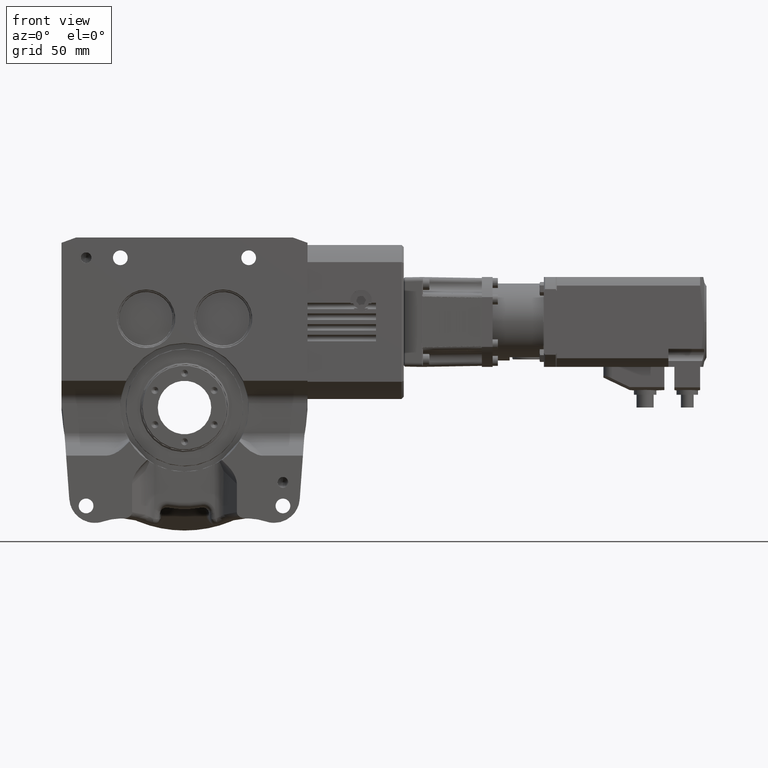
[diagram: clean part render]
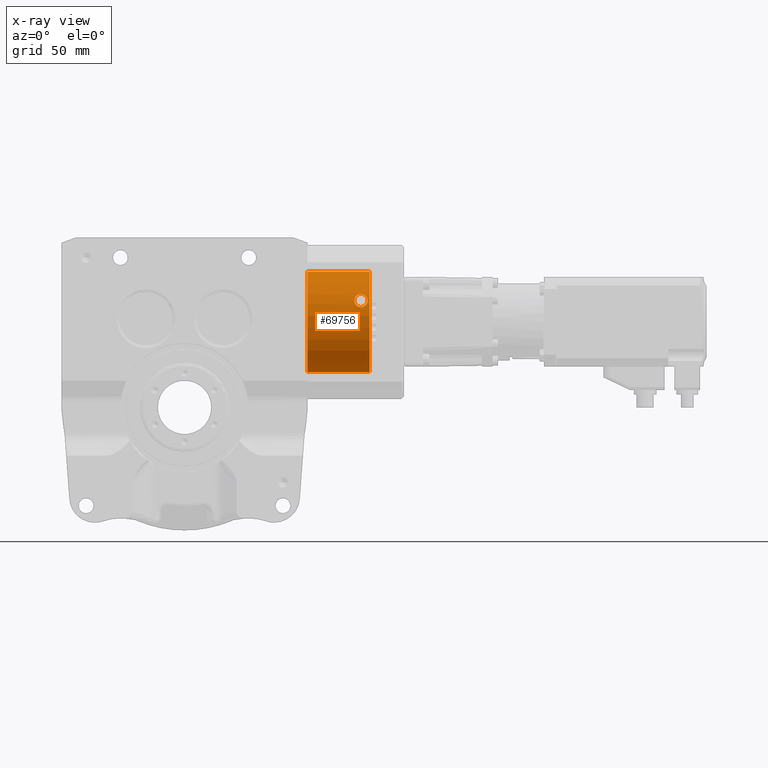
[diagram: x-ray — body ghosted, one internal face saturated and labeled with its STEP entity id]
A machine part, front view, then the same camera in x-ray: the body is ghosted and one INTERNAL B-rep face — a face not visible from any outside direction — is saturated and labeled: STEP entity #69756.
In plain terms, the highlighted cylindrical surface (partial cylindrical patch) has radius 23.5 mm, axis along (-1, 0, 0).
Its self-contained STEP definition (entity closure, byte-faithful):
#199 = CARTESIAN_POINT ( 'NONE',  ( 22.89499997156706002, -22.17069500146465089, 7.791802927879325047 ) ) ;
#599 = CARTESIAN_POINT ( 'NONE',  ( 21.95043312330504648, -21.24158163322308468, 10.05212658422136762 ) ) ;
#815 = DIRECTION ( 'NONE',  ( -1.000000000000000000, 0.000000000000000000, 0.000000000000000000 ) ) ;
#1785 = CARTESIAN_POINT ( 'NONE',  ( 22.74801269831941042, -20.17130559358625064, 12.05704287090212112 ) ) ;
#2176 = CARTESIAN_POINT ( 'NONE',  ( 23.70907681655216237, -19.73181009776120476, 12.76349759613219348 ) ) ;
#3766 = ORIENTED_EDGE ( 'NONE', *, *, #64572, .F. ) ;
#3895 = FACE_BOUND ( 'NONE', #32121, .T. ) ;
#4386 = CARTESIAN_POINT ( 'NONE',  ( 28.04134119124819691, -21.15271762113155063, 10.23827498022649962 ) ) ;
#4782 = CARTESIAN_POINT ( 'NONE',  ( 27.39217048328112369, -22.05725042040715422, 8.107259374718269740 ) ) ;
#5177 = CARTESIAN_POINT ( 'NONE',  ( 27.59146375826266961, -20.43183141868062336, 11.61015125422974492 ) ) ;
#5418 = CARTESIAN_POINT ( 'NONE',  ( 22.95197774406377178, -22.18903689821153336, 7.739297614446987161 ) ) ;
#5491 = CARTESIAN_POINT ( 'NONE',  ( -3.469446951953614978E-15, 2.877919977996279926E-15, -23.50000000000000000 ) ) ;
#5569 = CARTESIAN_POINT ( 'NONE',  ( 27.53537711014667266, -20.38302065592441537, 11.69540710436081810 ) ) ;
#5588 = B_SPLINE_CURVE_WITH_KNOTS ( 'NONE', 3,
 ( #38331, #75069, #44707, #14386, #35121, #16387, #72649, #78233, #23554, #59479, #54269, #47893, #78628, #29147, #53479, #11556, #29935, #41901, #65058, #17179, #52691, #66250, #23946, #77839, #35900, #60255, #59071, #72270, #5569, #29542, #65870, #5177, #41506, #10366, #46712, #17563, #40713, #48277, #34721, #23153, #47497, #17949, #42288, #66654, #71866, #11957, #53873, #11171, #4386, #28764, #53091, #35511, #71475, #77457, #59856, #36296, #60641, #22758, #71085, #28357, #77068, #47096, #22365, #16779, #41104, #65461, #4782, #10770, #5955, #12348, #6732, #49078, #7517, #38262, #55442, #62215 ),
 .UNSPECIFIED., .F., .F.,
 ( 4, 2, 2, 1, 1, 2, 2, 2, 2, 1, 1, 1, 2, 2, 2, 1, 1, 1, 2, 2, 2, 2, 1, 1, 2, 2, 2, 2, 2, 1, 2, 2, 2, 2, 1, 1, 2, 2, 2, 2, 1, 2, 2, 2, 4 ),
 ( 0.000000000000000000, 0.06250000000001074141, 0.09375000000001655620, 0.1093750000000198591, 0.1171875000000215244, 0.1210937500000226069, 0.1250000000000236755, 0.1875000000000293932, 0.2187500000000329459, 0.2343750000000343892, 0.2421875000000351386, 0.2460937500000351941, 0.2480468750000350275, 0.2500000000000348610, 0.2812500000000334177, 0.2968750000000323630, 0.3046875000000319189, 0.3085937500000323075, 0.3105468750000324185, 0.3125000000000325295, 0.3437500000000316414, 0.3593750000000312528, 0.3671875000000315858, 0.3710937500000319189, 0.3730468750000324185, 0.3750000000000329181, 0.4062500000000358602, 0.4375000000000387468, 0.4687500000000416889, 0.4843750000000430211, 0.4921875000000436318, 0.5000000000000441869, 0.5625000000000494049, 0.5937500000000519584, 0.6093750000000532907, 0.6171875000000537348, 0.6210937500000536238, 0.6250000000000535127, 0.6875000000000479616, 0.7187500000000451861, 0.7343750000000437428, 0.7421875000000426326, 0.7500000000000415223, 0.8750000000000207612, 1.000000000000000000 ),
 .UNSPECIFIED. ) ;
#5811 = CARTESIAN_POINT ( 'NONE',  ( 23.14995892684027368, -22.24638167884539186, 7.572945313511030285 ) ) ;
#5904 = EDGE_CURVE ( 'NONE', #67388, #18855, #49908, .T. ) ;
#5955 = CARTESIAN_POINT ( 'NONE',  ( 27.29750277825292670, -22.09860071749340449, 7.993863632665717311 ) ) ;
#6581 = CARTESIAN_POINT ( 'NONE',  ( 21.95902926734257576, -21.12182279223205938, 10.30119215420751466 ) ) ;
#6732 = CARTESIAN_POINT ( 'NONE',  ( 27.24931907258000052, -22.11803080675017341, 7.939969040537710576 ) ) ;
#6978 = CARTESIAN_POINT ( 'NONE',  ( 21.95511173855185305, -21.35149583975198340, 9.816413563948309218 ) ) ;
#7517 = CARTESIAN_POINT ( 'NONE',  ( 26.60604533702732510, -22.31377738327580929, 7.373742633501970900 ) ) ;
#7748 = CARTESIAN_POINT ( 'NONE',  ( 23.76057766762001577, -19.71667698439627969, 12.78681968000590707 ) ) ;
#7992 = EDGE_LOOP ( 'NONE', ( #65829, #40848, #35888 ) ) ;
#8147 = CARTESIAN_POINT ( 'NONE',  ( 24.59404191782711990, -19.54347717270393403, 13.04999999999999716 ) ) ;
#8155 = CARTESIAN_POINT ( 'NONE',  ( 24.28168821643829745, -22.59999999999999787, 6.441273166075170309 ) ) ;
#8540 = CARTESIAN_POINT ( 'NONE',  ( 22.17279478751430233, -20.68945443445651833, 11.14433006832356376 ) ) ;
#9971 = VECTOR ( 'NONE', #49501, 1000.000000000000000 ) ;
#10366 = CARTESIAN_POINT ( 'NONE',  ( 27.70380030405567950, -20.54306733560412823, 11.41216559084690374 ) ) ;
#10770 = CARTESIAN_POINT ( 'NONE',  ( 27.34576618853876084, -22.07840564747581880, 8.049585675160955134 ) ) ;
#11171 = CARTESIAN_POINT ( 'NONE',  ( 28.03462534095849534, -21.11812944524791291, 10.30951299531651166 ) ) ;
#11409 = CARTESIAN_POINT ( 'NONE',  ( 23.40355350091324027, -22.30709968186946668, 7.392924191762340058 ) ) ;
#11556 = CARTESIAN_POINT ( 'NONE',  ( 26.99752083665401869, -20.02085059020054203, 12.30545575455743013 ) ) ;
#11647 = CIRCLE ( 'NONE', #32033, 23.50000000000000000 ) ;
#11804 = CARTESIAN_POINT ( 'NONE',  ( 22.12338896078222916, -20.75879820336716008, 11.01425203031524269 ) ) ;
#11957 = CARTESIAN_POINT ( 'NONE',  ( 28.00262613703578651, -21.00261385894379274, 10.54345040359028296 ) ) ;
#12000 = ORIENTED_EDGE ( 'NONE', *, *, #46199, .T. ) ;
#12348 = CARTESIAN_POINT ( 'NONE',  ( 27.26492701337710756, -22.11185072927155204, 7.957156940806316747 ) ) ;
#12396 = VERTEX_POINT ( 'NONE', #45013 ) ;
#12591 = CARTESIAN_POINT ( 'NONE',  ( 21.95076834792660492, -21.23380798087566390, 10.06853549990419516 ) ) ;
#13393 = CARTESIAN_POINT ( 'NONE',  ( 24.17528188114542687, -19.59925156589372008, 12.96769323900944926 ) ) ;
#14386 = CARTESIAN_POINT ( 'NONE',  ( 25.71428816457069289, -19.59897439948856146, 12.96701106235094336 ) ) ;
#14641 = ORIENTED_EDGE ( 'NONE', *, *, #34010, .T. ) ;
#15155 = CARTESIAN_POINT ( 'NONE',  ( -8.307318497359771570, -22.59999999999999787, 6.441273166075170309 ) ) ;
#15779 = CARTESIAN_POINT ( 'NONE',  ( 24.28168821643829745, -22.59999999999999787, 6.441273166075170309 ) ) ;
#16387 = CARTESIAN_POINT ( 'NONE',  ( 25.96728879662837031, -19.64753447292511268, 12.89303409916596976 ) ) ;
#16779 = CARTESIAN_POINT ( 'NONE',  ( 27.69705990316940714, -21.88546936635152207, 8.561828943003140679 ) ) ;
#17179 = CARTESIAN_POINT ( 'NONE',  ( 27.17254347350224108, -20.12097212886744302, 12.14070103933407552 ) ) ;
#17563 = CARTESIAN_POINT ( 'NONE',  ( 27.76041473027032680, -20.60631970166985738, 11.29741655514206933 ) ) ;
#17803 = CARTESIAN_POINT ( 'NONE',  ( 21.95111764612329708, -21.31629812341402896, 9.892853569369849609 ) ) ;
#17949 = CARTESIAN_POINT ( 'NONE',  ( 27.85203491875904191, -20.72154586609044458, 11.08500161090342573 ) ) ;
#18196 = CARTESIAN_POINT ( 'NONE',  ( 25.00000000000000000, -22.44877502225899946, 6.949999999999999289 ) ) ;
#18586 = CARTESIAN_POINT ( 'NONE',  ( 22.23937352864247785, -21.82934249313454345, 8.702307992388742974 ) ) ;
#18855 = VERTEX_POINT ( 'NONE', #49403 ) ;
#18971 = CARTESIAN_POINT ( 'NONE',  ( 21.96672708835875554, -21.42039994912943612, 9.665411505979312423 ) ) ;
#19091 = ORIENTED_EDGE ( 'NONE', *, *, #26718, .F. ) ;
#19359 = CARTESIAN_POINT ( 'NONE',  ( 23.74513881801649262, -19.72114466754182160, 12.77993635951510498 ) ) ;
#19907 = EDGE_LOOP ( 'NONE', ( #19091, #12000, #14641, #3766 ) ) ;
#20670 = ORIENTED_EDGE ( 'NONE', *, *, #46764, .F. ) ;
#20937 = CARTESIAN_POINT ( 'NONE',  ( 23.45068350865273032, -19.81858853556337863, 12.62888155511793187 ) ) ;
#21000 = CARTESIAN_POINT ( 'NONE',  ( 25.00000000000000000, -22.44877502225899946, 6.949999999999999289 ) ) ;
#22283 = FACE_OUTER_BOUND ( 'NONE', #19907, .T. ) ;
#22365 = CARTESIAN_POINT ( 'NONE',  ( 27.78681152653518538, -21.81369291468443095, 8.743888084579422681 ) ) ;
#22758 = CARTESIAN_POINT ( 'NONE',  ( 27.90930147572594322, -21.67398984854622768, 9.082388656361725765 ) ) ;
#22991 = DIRECTION ( 'NONE',  ( 0.000000000000000000, 0.000000000000000000, 1.000000000000000000 ) ) ;
#23153 = CARTESIAN_POINT ( 'NONE',  ( 27.81046267850883780, -20.66759287670773304, 11.18484132483169624 ) ) ;
#23554 = CARTESIAN_POINT ( 'NONE',  ( 26.16662864901126895, -19.69636552891432046, 12.81809449049613470 ) ) ;
#23801 = CARTESIAN_POINT ( 'NONE',  ( 22.14498438137243852, -21.73845157954754370, 8.926916851463206015 ) ) ;
#23946 = CARTESIAN_POINT ( 'NONE',  ( 27.25183609583136501, -20.17020394880956147, 12.05894462695523650 ) ) ;
#24187 = CARTESIAN_POINT ( 'NONE',  ( 22.15012571941229069, -21.74403163562029562, 8.913317114826785570 ) ) ;
#25193 = DIRECTION ( 'NONE',  ( 0.000000000000000000, 0.000000000000000000, 1.000000000000000000 ) ) ;
#25368 = CARTESIAN_POINT ( 'NONE',  ( 22.60315912262202431, -20.27198570064824068, 11.88800518315188803 ) ) ;
#26162 = CARTESIAN_POINT ( 'NONE',  ( 23.63682469462590419, -19.75410430305251097, 12.72909245374876974 ) ) ;
#26718 = EDGE_CURVE ( 'NONE', #74485, #43403, #31737, .T. ) ;
#26791 = B_SPLINE_CURVE_WITH_KNOTS ( 'NONE', 3,
 ( #18196, #48921, #49318, #54888, #11409, #5811, #35749, #5418, #199, #29783, #30174, #54119, #73284, #43311, #78481, #37323, #18586, #61678, #42924, #61263, #24187, #23801, #67281, #48126, #72505, #18971, #6978, #17803, #42139, #36138, #599, #31344, #12591, #55685, #36922, #6581, #54504, #30956, #73673, #66493, #11804, #78863, #48516, #8540, #74063, #50098, #63626, #56865, #39289, #25368, #50877, #57255, #1785, #32111, #43707, #56467, #75234, #45287, #69247, #57640, #44489, #49704, #20937, #68848, #26162, #2176, #19359, #7748, #74462, #68061, #13393, #8147, #37727 ),
 .UNSPECIFIED., .F., .F.,
 ( 4, 2, 2, 2, 1, 2, 2, 2, 2, 1, 1, 2, 2, 2, 2, 1, 1, 1, 1, 2, 2, 2, 2, 2, 1, 1, 2, 2, 2, 2, 2, 1, 1, 1, 2, 2, 2, 2, 1, 1, 1, 2, 2, 4 ),
 ( 0.000000000000000000, 0.1250000000000183187, 0.1875000000000278944, 0.2187500000000322797, 0.2343750000000344724, 0.2421875000000349165, 0.2500000000000353606, 0.3125000000000434097, 0.3437500000000474620, 0.3593750000000493494, 0.3671875000000501821, 0.3710937500000506817, 0.3750000000000511258, 0.4375000000000618394, 0.4687500000000673350, 0.4843750000000697220, 0.4921875000000704437, 0.4960937500000710543, 0.4980468750000715539, 0.4990234375000717759, 0.5000000000000720535, 0.5625000000000369704, 0.5937500000000192069, 0.6093750000000103251, 0.6171875000000063283, 0.6210937500000042188, 0.6230468750000031086, 0.6250000000000021094, 0.6874999999999819034, 0.7187499999999725775, 0.7343749999999674705, 0.7421874999999645839, 0.7460937499999631406, 0.7480468749999628075, 0.7490234374999630296, 0.7499999999999631406, 0.8124999999999671374, 0.8437499999999686917, 0.8593749999999692468, 0.8671874999999690248, 0.8710937499999694689, 0.8730468749999694689, 0.8749999999999695799, 1.000000000000000000 ),
 .UNSPECIFIED. ) ;
#26935 = CARTESIAN_POINT ( 'NONE',  ( 24.51724035459723439, -22.61367503854049232, 6.393292609584736219 ) ) ;
#28357 = CARTESIAN_POINT ( 'NONE',  ( 27.87320520609144836, -21.71797101406666641, 8.976616158875804885 ) ) ;
#28675 = EDGE_CURVE ( 'NONE', #64446, #77371, #5588, .T. ) ;
#28764 = CARTESIAN_POINT ( 'NONE',  ( 28.04556012547044119, -21.18725038034216723, 10.16626699285319368 ) ) ;
#29147 = CARTESIAN_POINT ( 'NONE',  ( 26.79608239852921159, -19.92089582704348416, 12.46708259456119805 ) ) ;
#29542 = CARTESIAN_POINT ( 'NONE',  ( 27.54258803058172234, -20.38923211999785323, 11.68457366918616458 ) ) ;
#29783 = CARTESIAN_POINT ( 'NONE',  ( 22.84013646204104830, -22.15140438592055361, 7.846362592514532608 ) ) ;
#29935 = CARTESIAN_POINT ( 'NONE',  ( 27.05685337155769332, -20.05284300168757028, 12.25318425300981140 ) ) ;
#29937 = VERTEX_POINT ( 'NONE', #5491 ) ;
#30053 = CARTESIAN_POINT ( 'NONE',  ( 29.00000000000000000, 2.877919977996279926E-15, -23.50000000000000000 ) ) ;
#30174 = CARTESIAN_POINT ( 'NONE',  ( 22.80404121167130782, -22.13833314915842365, 7.883179368607892812 ) ) ;
#30494 = AXIS2_PLACEMENT_3D ( 'NONE', #70931, #76497, #22991 ) ;
#30956 = CARTESIAN_POINT ( 'NONE',  ( 22.02578283696724171, -20.92895387627999426, 10.68622275760848872 ) ) ;
#31138 = LINE ( 'NONE', #49108, #9971 ) ;
#31344 = CARTESIAN_POINT ( 'NONE',  ( 21.95062784271882350, -21.23691977200727976, 10.06196958247118189 ) ) ;
#31569 = ORIENTED_EDGE ( 'NONE', *, *, #28675, .F. ) ;
#31737 = CIRCLE ( 'NONE', #30494, 23.50000000000000000 ) ;
#31903 = LINE ( 'NONE', #74648, #43582 ) ;
#31943 = CARTESIAN_POINT ( 'NONE',  ( 25.00000000000000000, -22.62051255781074843, 6.368862663139060132 ) ) ;
#32033 = AXIS2_PLACEMENT_3D ( 'NONE', #61886, #815, #25193 ) ;
#32111 = CARTESIAN_POINT ( 'NONE',  ( 22.76722339536237527, -20.15876110482176031, 12.07793335697555115 ) ) ;
#32121 = EDGE_LOOP ( 'NONE', ( #20670, #31569 ) ) ;
#32903 = CARTESIAN_POINT ( 'NONE',  ( 25.00000000000000000, -22.62051255781074843, 6.368862663139060132 ) ) ;
#33068 = EDGE_CURVE ( 'NONE', #55204, #67388, #64083, .T. ) ;
#34010 = EDGE_CURVE ( 'NONE', #29937, #12396, #11647, .T. ) ;
#34721 = CARTESIAN_POINT ( 'NONE',  ( 27.80497028350697164, -20.66058372441996838, 11.19778593286231327 ) ) ;
#34834 = VECTOR ( 'NONE', #39483, 1000.000000000000000 ) ;
#35121 = CARTESIAN_POINT ( 'NONE',  ( 25.81605099148463722, -19.61631728285876264, 12.94070339194150066 ) ) ;
#35511 = CARTESIAN_POINT ( 'NONE',  ( 28.04860414989083139, -21.22082280704224289, 10.09591590271350192 ) ) ;
#35749 = CARTESIAN_POINT ( 'NONE',  ( 23.06861752474831917, -22.22445573330891477, 7.637174682353387034 ) ) ;
#35888 = ORIENTED_EDGE ( 'NONE', *, *, #52323, .F. ) ;
#35900 = CARTESIAN_POINT ( 'NONE',  ( 27.40281410616139013, -20.27655551547344004, 11.87916832392362032 ) ) ;
#36138 = CARTESIAN_POINT ( 'NONE',  ( 21.95009063239740854, -21.25241853102184209, 10.02920110090714623 ) ) ;
#36296 = CARTESIAN_POINT ( 'NONE',  ( 27.96557444662465741, -21.58951461515320602, 9.281403276225891119 ) ) ;
#36922 = CARTESIAN_POINT ( 'NONE',  ( 21.95307962673002677, -21.18917986192749936, 10.16258068236204615 ) ) ;
#37323 = CARTESIAN_POINT ( 'NONE',  ( 22.30625778348230526, -21.88333675442950721, 8.565948008312592066 ) ) ;
#37727 = CARTESIAN_POINT ( 'NONE',  ( 25.00000000000000000, -19.54347717270395179, 13.05000000000000071 ) ) ;
#38262 = CARTESIAN_POINT ( 'NONE',  ( 25.84164769390247685, -22.42177549446237350, 7.038878837497358987 ) ) ;
#38331 = CARTESIAN_POINT ( 'NONE',  ( 25.00000000000000000, -19.54347717270395179, 13.05000000000000071 ) ) ;
#39289 = CARTESIAN_POINT ( 'NONE',  ( 22.54873577513247795, -20.31345661479987896, 11.81737067377319406 ) ) ;
#39483 = DIRECTION ( 'NONE',  ( 1.000000000000000000, 0.000000000000000000, 0.000000000000000000 ) ) ;
#40713 = CARTESIAN_POINT ( 'NONE',  ( 27.77727634644519839, -20.62615428234501280, 11.26116702792311131 ) ) ;
#40848 = ORIENTED_EDGE ( 'NONE', *, *, #33068, .F. ) ;
#41104 = CARTESIAN_POINT ( 'NONE',  ( 27.53895431224825785, -21.98289236864061991, 8.307013577156361350 ) ) ;
#41506 = CARTESIAN_POINT ( 'NONE',  ( 27.63600306086017611, -20.47327202240843391, 11.53719836841902513 ) ) ;
#41901 = CARTESIAN_POINT ( 'NONE',  ( 27.12470676313515128, -20.09211774255852134, 12.18846813557175501 ) ) ;
#42139 = CARTESIAN_POINT ( 'NONE',  ( 21.94984974472430039, -21.27392921313359864, 9.983519087867426478 ) ) ;
#42288 = CARTESIAN_POINT ( 'NONE',  ( 27.88412652409653703, -20.76845365623067963, 10.99656704061771784 ) ) ;
#42924 = CARTESIAN_POINT ( 'NONE',  ( 22.17334234066323262, -21.76832678606654881, 8.853856117863038833 ) ) ;
#43311 = CARTESIAN_POINT ( 'NONE',  ( 22.51357609850840547, -22.01530206875540685, 8.222259849564249379 ) ) ;
#43403 = VERTEX_POINT ( 'NONE', #50246 ) ;
#43582 = VECTOR ( 'NONE', #50666, 1000.000000000000000 ) ;
#43707 = CARTESIAN_POINT ( 'NONE',  ( 22.78929189773176844, -20.14471058260476255, 12.10128859836564175 ) ) ;
#44489 = CARTESIAN_POINT ( 'NONE',  ( 23.12246554338683424, -19.95573580007392422, 12.41174930703734702 ) ) ;
#44707 = CARTESIAN_POINT ( 'NONE',  ( 25.40798514103294536, -19.55735147940010066, 13.02976847784295877 ) ) ;
#45013 = CARTESIAN_POINT ( 'NONE',  ( -3.469446951953614978E-15, 0.000000000000000000, 23.50000000000000000 ) ) ;
#45287 = CARTESIAN_POINT ( 'NONE',  ( 22.80801287663630106, -20.13297703740726163, 12.12077755906590859 ) ) ;
#46199 = EDGE_CURVE ( 'NONE', #74485, #29937, #31138, .T. ) ;
#46712 = CARTESIAN_POINT ( 'NONE',  ( 27.72655427794681771, -20.56760484127002897, 11.36788836240766010 ) ) ;
#46764 = EDGE_CURVE ( 'NONE', #77371, #64446, #26791, .T. ) ;
#47096 = CARTESIAN_POINT ( 'NONE',  ( 27.86250746653782429, -21.73017591484663313, 8.947045279611234747 ) ) ;
#47497 = CARTESIAN_POINT ( 'NONE',  ( 27.81367376631105159, -20.67173141072455778, 11.17718920972694896 ) ) ;
#47893 = CARTESIAN_POINT ( 'NONE',  ( 26.38130571520275680, -19.75664821255045922, 12.72525592066425837 ) ) ;
#48126 = CARTESIAN_POINT ( 'NONE',  ( 22.02953804712952390, -21.59022522335031269, 9.281477641446469917 ) ) ;
#48277 = CARTESIAN_POINT ( 'NONE',  ( 27.79670769100883021, -20.65012963979772920, 11.21707268117967971 ) ) ;
#48516 = CARTESIAN_POINT ( 'NONE',  ( 22.16278141569601701, -20.70281133971467824, 11.11948397669066679 ) ) ;
#48921 = CARTESIAN_POINT ( 'NONE',  ( 24.57784211469034474, -22.44877502225900656, 6.949999999999997513 ) ) ;
#49078 = CARTESIAN_POINT ( 'NONE',  ( 26.95077227574774525, -22.23277879988588523, 7.619468200741851938 ) ) ;
#49108 = CARTESIAN_POINT ( 'NONE',  ( -8.307318497359771570, 2.877919977996279926E-15, -23.50000000000000000 ) ) ;
#49169 = AXIS2_PLACEMENT_3D ( 'NONE', #70185, #51033, #64189 ) ;
#49318 = CARTESIAN_POINT ( 'NONE',  ( 24.15859491531486114, -22.42178924313718014, 7.038824681270400063 ) ) ;
#49403 = CARTESIAN_POINT ( 'NONE',  ( 25.71831178356169900, -22.59999999999999787, 6.441273166075170309 ) ) ;
#49501 = DIRECTION ( 'NONE',  ( -1.000000000000000000, 0.000000000000000000, 0.000000000000000000 ) ) ;
#49704 = CARTESIAN_POINT ( 'NONE',  ( 23.36803843671195580, -19.85067342059948814, 12.57856433793916473 ) ) ;
#49908 = LINE ( 'NONE', #15155, #34834 ) ;
#50098 = CARTESIAN_POINT ( 'NONE',  ( 22.18366649831925486, -20.67517421629897001, 11.17082056736487772 ) ) ;
#50246 = CARTESIAN_POINT ( 'NONE',  ( 29.00000000000000000, 0.000000000000000000, 23.50000000000000000 ) ) ;
#50666 = DIRECTION ( 'NONE',  ( -1.000000000000000000, 0.000000000000000000, 0.000000000000000000 ) ) ;
#50877 = CARTESIAN_POINT ( 'NONE',  ( 22.68295416458845537, -20.21512529216279219, 11.98381602911450727 ) ) ;
#51033 = DIRECTION ( 'NONE',  ( -1.000000000000000000, 0.000000000000000000, 0.000000000000000000 ) ) ;
#51429 = FACE_BOUND ( 'NONE', #7992, .T. ) ;
#52323 = EDGE_CURVE ( 'NONE', #18855, #55204, #70975, .T. ) ;
#52339 = CARTESIAN_POINT ( 'NONE',  ( 25.00000000000000000, -22.62051255781074843, 6.368862663139060132 ) ) ;
#52691 = CARTESIAN_POINT ( 'NONE',  ( 27.18205121333549812, -20.12681498003979996, 12.13100881895036309 ) ) ;
#53091 = CARTESIAN_POINT ( 'NONE',  ( 28.04780785589163727, -21.21025990499969538, 10.11810361693528826 ) ) ;
#53479 = CARTESIAN_POINT ( 'NONE',  ( 26.87763253301150712, -19.95909463671524620, 12.40579695471840260 ) ) ;
#53873 = CARTESIAN_POINT ( 'NONE',  ( 28.01798971743478717, -21.04887920458331863, 10.45081601844536046 ) ) ;
#54119 = CARTESIAN_POINT ( 'NONE',  ( 22.78539305483571908, -22.13136913439050701, 7.902711836358871089 ) ) ;
#54269 = CARTESIAN_POINT ( 'NONE',  ( 26.20557160179870237, -19.70705139308953235, 12.80164668809906203 ) ) ;
#54504 = CARTESIAN_POINT ( 'NONE',  ( 22.00436580157721167, -20.98201733664811641, 10.58103844700556451 ) ) ;
#54888 = CARTESIAN_POINT ( 'NONE',  ( 23.58541219377029918, -22.34083190577174349, 7.289843771170549935 ) ) ;
#55204 = VERTEX_POINT ( 'NONE', #52339 ) ;
#55442 = CARTESIAN_POINT ( 'NONE',  ( 25.42228552962955845, -22.44877502225901011, 6.949999999999999289 ) ) ;
#55685 = CARTESIAN_POINT ( 'NONE',  ( 21.95089124382008805, -21.23133896586138647, 10.07374050573466384 ) ) ;
#56296 = CARTESIAN_POINT ( 'NONE',  ( 25.24170911519092542, -22.62051255781073777, 6.368862663139055691 ) ) ;
#56467 = CARTESIAN_POINT ( 'NONE',  ( 22.80023472492649361, -20.13783150016497814, 12.11271580559068006 ) ) ;
#56865 = CARTESIAN_POINT ( 'NONE',  ( 22.38614386271619239, -20.44856128273876550, 11.58315695924586031 ) ) ;
#57255 = CARTESIAN_POINT ( 'NONE',  ( 22.70925072361300678, -20.19706281645797574, 12.01406466414858976 ) ) ;
#57640 = CARTESIAN_POINT ( 'NONE',  ( 22.96180527425084605, -20.03752101887839032, 12.27927328840809018 ) ) ;
#59071 = CARTESIAN_POINT ( 'NONE',  ( 27.49909383424088105, -20.35234397371581494, 11.74876558265220972 ) ) ;
#59479 = CARTESIAN_POINT ( 'NONE',  ( 26.19130429582932251, -19.70308589622027284, 12.80775231044284901 ) ) ;
#59856 = CARTESIAN_POINT ( 'NONE',  ( 27.98652365327873071, -21.54966800282405259, 9.373516727805442983 ) ) ;
#60255 = CARTESIAN_POINT ( 'NONE',  ( 27.44765401992730602, -20.31058273624065080, 11.82096356739350895 ) ) ;
#60641 = CARTESIAN_POINT ( 'NONE',  ( 27.92892949657471391, -21.64632473687690251, 9.147943507408315966 ) ) ;
#61263 = CARTESIAN_POINT ( 'NONE',  ( 22.15932611095886884, -21.75378189057323652, 8.889488872543985565 ) ) ;
#61678 = CARTESIAN_POINT ( 'NONE',  ( 22.20754261836467336, -21.80170146699810019, 8.771497568203558970 ) ) ;
#61886 = CARTESIAN_POINT ( 'NONE',  ( -3.469446951953614978E-15, 0.000000000000000000, 0.000000000000000000 ) ) ;
#62215 = CARTESIAN_POINT ( 'NONE',  ( 25.00000000000000000, -22.44877502225899946, 6.949999999999999289 ) ) ;
#62281 = CARTESIAN_POINT ( 'NONE',  ( 25.48275964540240324, -22.61367503854049232, 6.393292609584661612 ) ) ;
#63626 = CARTESIAN_POINT ( 'NONE',  ( 22.27833023276611613, -20.55288696201000676, 11.39697243342980748 ) ) ;
#64083 = B_SPLINE_CURVE_WITH_KNOTS ( 'NONE', 3,
 ( #32903, #68854, #26935, #8155 ),
 .UNSPECIFIED., .F., .F.,
 ( 4, 4 ),
 ( 0.000000000000000000, 1.000000000000000000 ),
 .UNSPECIFIED. ) ;
#64189 = DIRECTION ( 'NONE',  ( 0.000000000000000000, 0.000000000000000000, 1.000000000000000000 ) ) ;
#64446 = VERTEX_POINT ( 'NONE', #68338 ) ;
#64572 = EDGE_CURVE ( 'NONE', #43403, #12396, #31903, .T. ) ;
#65058 = CARTESIAN_POINT ( 'NONE',  ( 27.15825254410817990, -20.11224267819466860, 12.15517216478856177 ) ) ;
#65461 = CARTESIAN_POINT ( 'NONE',  ( 27.48234712087176490, -22.01365975686838894, 8.225108579604707870 ) ) ;
#65829 = ORIENTED_EDGE ( 'NONE', *, *, #5904, .F. ) ;
#65870 = CARTESIAN_POINT ( 'NONE',  ( 27.54717024998359420, -20.39320848260596719, 11.67763114611364017 ) ) ;
#66250 = CARTESIAN_POINT ( 'NONE',  ( 27.18776022805020531, -20.13034820157845672, 12.12514341981750121 ) ) ;
#66493 = CARTESIAN_POINT ( 'NONE',  ( 22.09135040463510080, -20.80828826140345811, 10.92013615252093750 ) ) ;
#66654 = CARTESIAN_POINT ( 'NONE',  ( 27.94000986215243643, -20.86231643022054527, 10.81711301781893297 ) ) ;
#67281 = CARTESIAN_POINT ( 'NONE',  ( 22.07965745596446538, -21.66618992066998572, 9.102650707120817586 ) ) ;
#67388 = VERTEX_POINT ( 'NONE', #15779 ) ;
#68061 = CARTESIAN_POINT ( 'NONE',  ( 23.77499068117082714, -19.71254330206046035, 12.79318765953585135 ) ) ;
#68338 = CARTESIAN_POINT ( 'NONE',  ( 25.00000000000000000, -19.54347717270395179, 13.05000000000000071 ) ) ;
#68848 = CARTESIAN_POINT ( 'NONE',  ( 23.57475819700774977, -19.77486507019229123, 12.69692616849318689 ) ) ;
#68854 = CARTESIAN_POINT ( 'NONE',  ( 24.75829088480871221, -22.62051255781073777, 6.368862663139054803 ) ) ;
#69247 = CARTESIAN_POINT ( 'NONE',  ( 22.80876002067870445, -20.13251125847248701, 12.12155103280070279 ) ) ;
#69756 = ADVANCED_FACE ( 'NONE', ( #22283, #51429, #3895 ), #76181, .F. ) ;
#70185 = CARTESIAN_POINT ( 'NONE',  ( -8.307318497359771570, 0.000000000000000000, 0.000000000000000000 ) ) ;
#70931 = CARTESIAN_POINT ( 'NONE',  ( 29.00000000000000000, 0.000000000000000000, 0.000000000000000000 ) ) ;
#70975 = B_SPLINE_CURVE_WITH_KNOTS ( 'NONE', 3,
 ( #75864, #62281, #56296, #31943 ),
 .UNSPECIFIED., .F., .F.,
 ( 4, 4 ),
 ( 0.000000000000000000, 1.000000000000000000 ),
 .UNSPECIFIED. ) ;
#71085 = CARTESIAN_POINT ( 'NONE',  ( 27.88432936795769379, -21.70497090107357963, 9.008026536458904943 ) ) ;
#71475 = CARTESIAN_POINT ( 'NONE',  ( 28.05399619193956440, -21.33267616055808702, 9.860060228624675460 ) ) ;
#71866 = CARTESIAN_POINT ( 'NONE',  ( 27.96405721047250736, -20.90988613060519796, 10.72489096629690053 ) ) ;
#72270 = CARTESIAN_POINT ( 'NONE',  ( 27.52453788314590710, -20.37374029576507795, 11.71157883941716982 ) ) ;
#72505 = CARTESIAN_POINT ( 'NONE',  ( 21.97930697100240138, -21.46434759098312028, 9.567254956280969225 ) ) ;
#72649 = CARTESIAN_POINT ( 'NONE',  ( 26.04255531146005964, -19.66444378421105910, 12.86714900707204023 ) ) ;
#73284 = CARTESIAN_POINT ( 'NONE',  ( 22.63490233920236960, -22.07355798005077929, 8.064202210532217308 ) ) ;
#73673 = CARTESIAN_POINT ( 'NONE',  ( 22.07305649273720860, -20.83966622296761884, 10.85970579664018310 ) ) ;
#74063 = CARTESIAN_POINT ( 'NONE',  ( 22.17958124404225728, -20.68049934937420531, 11.16095592501071820 ) ) ;
#74462 = CARTESIAN_POINT ( 'NONE',  ( 23.77086633295270346, -19.71372146574812589, 12.79137279405696148 ) ) ;
#74485 = VERTEX_POINT ( 'NONE', #30053 ) ;
#74648 = CARTESIAN_POINT ( 'NONE',  ( -8.307318497359771570, 0.000000000000000000, 23.50000000000000000 ) ) ;
#75069 = CARTESIAN_POINT ( 'NONE',  ( 25.20247204685110987, -19.54347717270393403, 13.04999999999999893 ) ) ;
#75234 = CARTESIAN_POINT ( 'NONE',  ( 22.80490434249457365, -20.13491464597695924, 12.11755993030438461 ) ) ;
#75864 = CARTESIAN_POINT ( 'NONE',  ( 25.71831178356169900, -22.59999999999999787, 6.441273166075170309 ) ) ;
#76181 = CYLINDRICAL_SURFACE ( 'NONE', #49169, 23.50000000000000000 ) ;
#76497 = DIRECTION ( 'NONE',  ( -1.000000000000000000, 0.000000000000000000, 0.000000000000000000 ) ) ;
#77068 = CARTESIAN_POINT ( 'NONE',  ( 27.86569782500568593, -21.72657609362935105, 8.955778462996132561 ) ) ;
#77371 = VERTEX_POINT ( 'NONE', #21000 ) ;
#77457 = CARTESIAN_POINT ( 'NONE',  ( 28.03695224340946623, -21.42420857229653208, 9.658473487146221004 ) ) ;
#77839 = CARTESIAN_POINT ( 'NONE',  ( 27.31262607053387370, -20.21085857479238612, 11.99083337612954026 ) ) ;
#78233 = CARTESIAN_POINT ( 'NONE',  ( 26.12954538455931441, -19.68644756748699365, 12.83335072050994086 ) ) ;
#78481 = CARTESIAN_POINT ( 'NONE',  ( 22.35514547977212985, -21.91761587398891109, 8.477736707423733975 ) ) ;
#78628 = CARTESIAN_POINT ( 'NONE',  ( 26.54905500064287693, -19.81521487598345388, 12.63487431346471901 ) ) ;
#78863 = CARTESIAN_POINT ( 'NONE',  ( 22.14055835457287458, -20.73344739542650572, 11.06217559172326048 ) ) ;